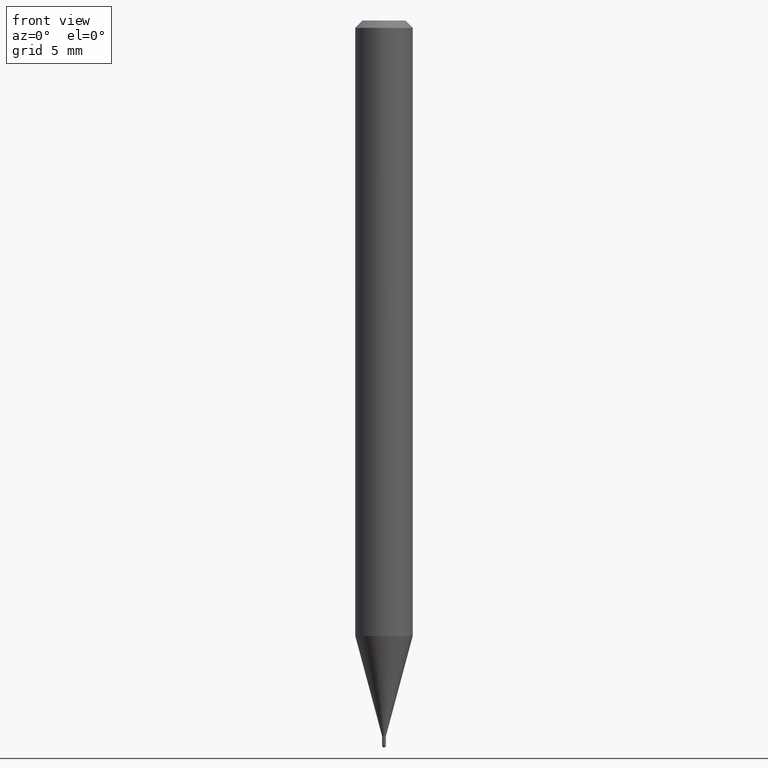
[diagram: clean part render]
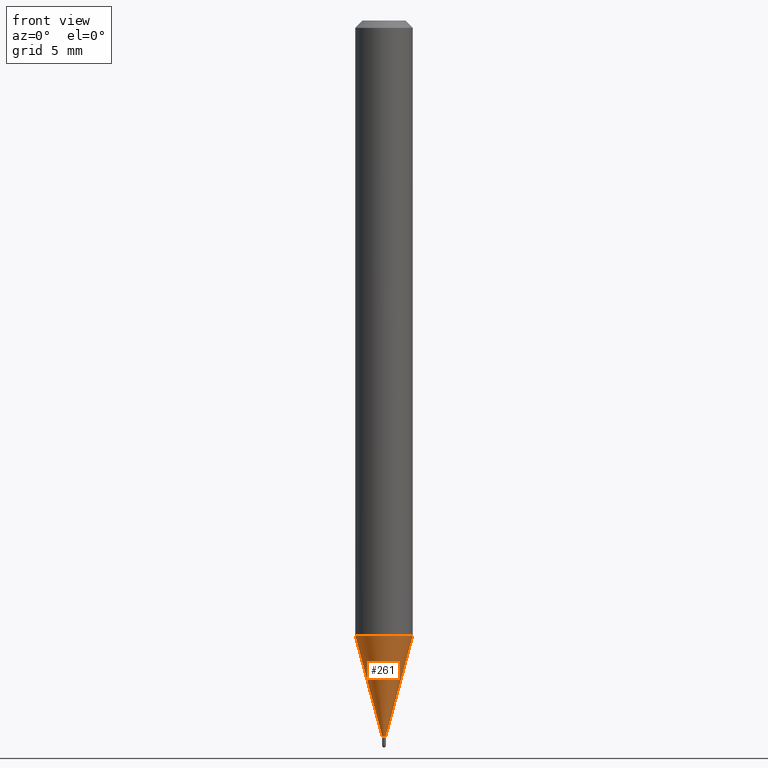
[diagram: same view with one face highlighted and labeled with its STEP entity id]
A machine part, front view. The second image highlights one B-rep face of the part: STEP entity #261.
In plain terms, the highlighted conical surface has half-angle 15 deg.
Its self-contained STEP definition (entity closure, byte-faithful):
#4 = VECTOR ( 'NONE', #139, 39.37007874015748143 ) ;
#17 = DIRECTION ( 'NONE',  ( -2.445468806185136597E-29, 3.491481338843145583E-15, 1.000000000000000000 ) ) ;
#23 = CONICAL_SURFACE ( 'NONE', #367, 0.003950000000000198144, 0.2617993877991574569 ) ;
#26 = VERTEX_POINT ( 'NONE', #143 ) ;
#51 = DIRECTION ( 'NONE',  ( 0.2588190451025285110, 1.565188264969565170E-15, 0.9659258262890662028 ) ) ;
#59 = VERTEX_POINT ( 'NONE', #329 ) ;
#63 = ORIENTED_EDGE ( 'NONE', *, *, #237, .T. ) ;
#77 = ORIENTED_EDGE ( 'NONE', *, *, #346, .F. ) ;
#86 = DIRECTION ( 'NONE',  ( -2.445468806185136597E-29, 3.491481338843145583E-15, 1.000000000000000000 ) ) ;
#89 = LINE ( 'NONE', #163, #4 ) ;
#91 = CIRCLE ( 'NONE', #342, 0.05904999999999999832 ) ;
#103 = AXIS2_PLACEMENT_3D ( 'NONE', #444, #86, #257 ) ;
#111 = DIRECTION ( 'NONE',  ( 1.000000000000000000, -6.982962677686273021E-15, 0.000000000000000000 ) ) ;
#136 = LINE ( 'NONE', #443, #259 ) ;
#139 = DIRECTION ( 'NONE',  ( -0.2588190451025285110, 5.211531920934594429E-15, 0.9659258262890662028 ) ) ;
#143 = CARTESIAN_POINT ( 'NONE',  ( -0.05904999999999999832, -4.003656531141925753E-15, -1.266864000502962107 ) ) ;
#163 = CARTESIAN_POINT ( 'NONE',  ( -0.003950000000000198144, -5.113139833384005937E-15, -1.472499999999999920 ) ) ;
#173 = EDGE_CURVE ( 'NONE', #26, #59, #91, .T. ) ;
#225 = VERTEX_POINT ( 'NONE', #254 ) ;
#226 = DIRECTION ( 'NONE',  ( 1.000000000000000000, -6.982962677686388195E-15, 0.000000000000000000 ) ) ;
#237 = EDGE_CURVE ( 'NONE', #225, #59, #136, .T. ) ;
#254 = CARTESIAN_POINT ( 'NONE',  ( 0.003950000000000198144, -5.168788974023393659E-15, -1.472499999999999920 ) ) ;
#257 = DIRECTION ( 'NONE',  ( 1.000000000000000000, -6.982962677686388195E-15, 0.000000000000000000 ) ) ;
#259 = VECTOR ( 'NONE', #51, 39.37007874015748143 ) ;
#261 = ADVANCED_FACE ( 'NONE', ( #363 ), #23, .T. ) ;
#267 = DIRECTION ( 'NONE',  ( -2.445468806185136597E-29, 3.491481338843145583E-15, 1.000000000000000000 ) ) ;
#313 = EDGE_CURVE ( 'NONE', #501, #225, #349, .T. ) ;
#329 = CARTESIAN_POINT ( 'NONE',  ( 0.05904999999999999832, -4.835575962725639377E-15, -1.266864000502962107 ) ) ;
#342 = AXIS2_PLACEMENT_3D ( 'NONE', #375, #267, #111 ) ;
#346 = EDGE_CURVE ( 'NONE', #501, #26, #89, .T. ) ;
#347 = ORIENTED_EDGE ( 'NONE', *, *, #313, .T. ) ;
#349 = CIRCLE ( 'NONE', #103, 0.003950000000000198144 ) ;
#353 = ORIENTED_EDGE ( 'NONE', *, *, #173, .F. ) ;
#363 = FACE_OUTER_BOUND ( 'NONE', #414, .T. ) ;
#367 = AXIS2_PLACEMENT_3D ( 'NONE', #498, #17, #226 ) ;
#375 = CARTESIAN_POINT ( 'NONE',  ( 3.098076394908904962E-29, -4.423232016608266035E-15, -1.266864000502962107 ) ) ;
#414 = EDGE_LOOP ( 'NONE', ( #77, #347, #63, #353 ) ) ;
#420 = CARTESIAN_POINT ( 'NONE',  ( -0.003950000000000198144, -4.558398182262966239E-15, -1.472499999999999920 ) ) ;
#443 = CARTESIAN_POINT ( 'NONE',  ( 0.003950000000000198144, -5.168788974023393659E-15, -1.472499999999999920 ) ) ;
#444 = CARTESIAN_POINT ( 'NONE',  ( 3.600952817107613145E-29, -5.141206271446531536E-15, -1.472499999999999920 ) ) ;
#498 = CARTESIAN_POINT ( 'NONE',  ( 3.600952817107613145E-29, -5.141206271446531536E-15, -1.472499999999999920 ) ) ;
#501 = VERTEX_POINT ( 'NONE', #420 ) ;